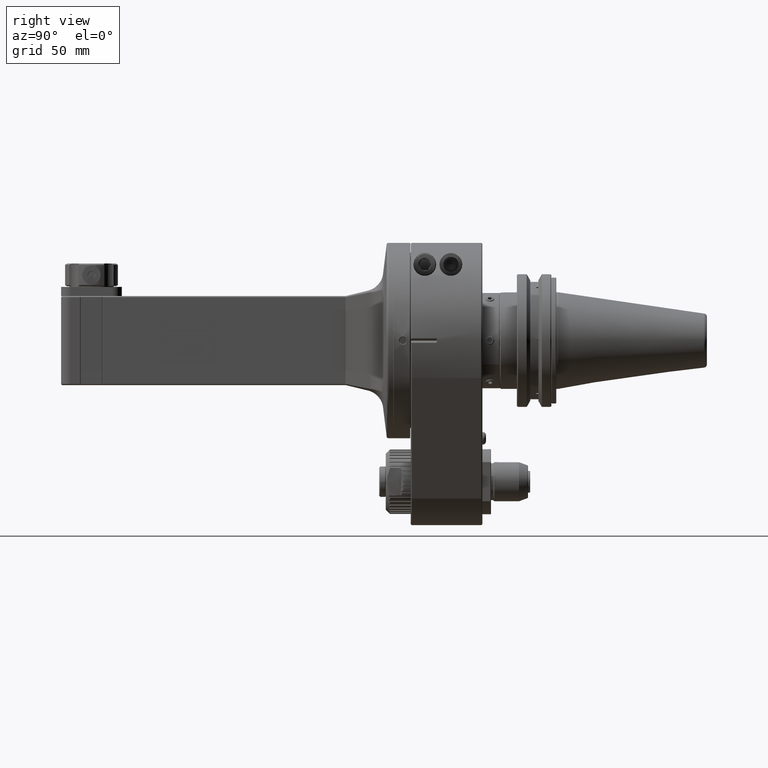
[diagram: clean part render]
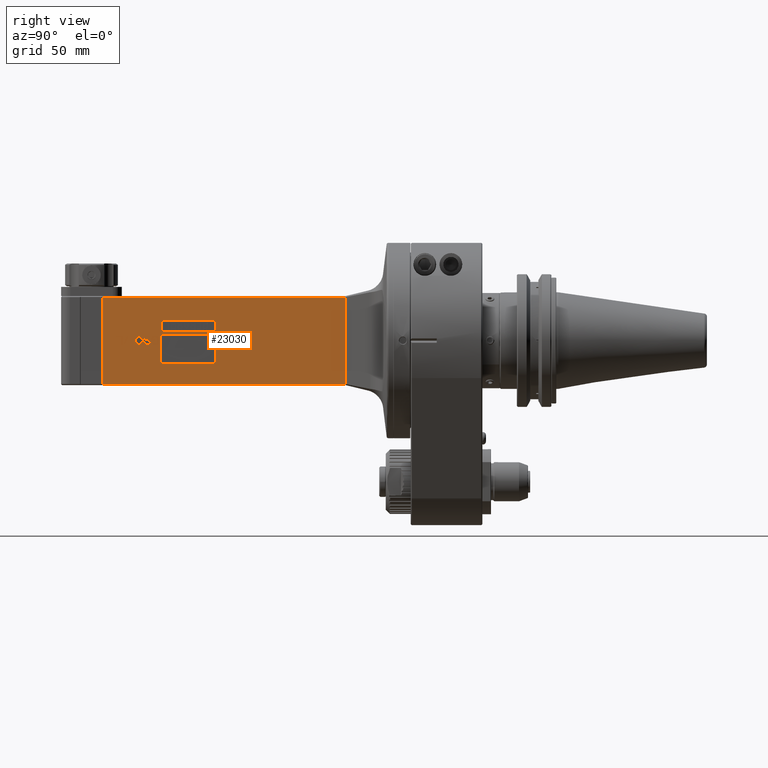
[diagram: same view with one face highlighted and labeled with its STEP entity id]
A machine part, right view. The second image highlights one B-rep face of the part: STEP entity #23030.
In plain terms, the highlighted planar face has unit normal (1, 0, 0).
Its self-contained STEP definition (entity closure, byte-faithful):
#1012=LINE('',#35683,#3087);
#1051=LINE('',#37735,#3126);
#1055=LINE('',#37744,#3130);
#1056=LINE('',#37746,#3131);
#1057=LINE('',#37749,#3132);
#1058=LINE('',#37751,#3133);
#1059=LINE('',#37753,#3134);
#1060=LINE('',#37754,#3135);
#1061=LINE('',#37757,#3136);
#1062=LINE('',#37759,#3137);
#1063=LINE('',#37761,#3138);
#1064=LINE('',#37762,#3139);
#1065=LINE('',#37765,#3140);
#1066=LINE('',#37767,#3141);
#1067=LINE('',#37769,#3142);
#1068=LINE('',#37771,#3143);
#1069=LINE('',#37773,#3144);
#1070=LINE('',#37775,#3145);
#1071=LINE('',#37777,#3146);
#1072=LINE('',#37779,#3147);
#1073=LINE('',#37781,#3148);
#1074=LINE('',#37783,#3149);
#1075=LINE('',#37785,#3150);
#1076=LINE('',#37787,#3151);
#1077=LINE('',#37789,#3152);
#1078=LINE('',#37791,#3153);
#1079=LINE('',#37793,#3154);
#1080=LINE('',#37795,#3155);
#1081=LINE('',#37797,#3156);
#1082=LINE('',#37799,#3157);
#1083=LINE('',#37801,#3158);
#1084=LINE('',#37803,#3159);
#1085=LINE('',#37805,#3160);
#1086=LINE('',#37807,#3161);
#1087=LINE('',#37809,#3162);
#1088=LINE('',#37811,#3163);
#1089=LINE('',#37813,#3164);
#1090=LINE('',#37815,#3165);
#1091=LINE('',#37817,#3166);
#1092=LINE('',#37819,#3167);
#1093=LINE('',#37821,#3168);
#1094=LINE('',#37823,#3169);
#1095=LINE('',#37825,#3170);
#1096=LINE('',#37827,#3171);
#1097=LINE('',#37829,#3172);
#1098=LINE('',#37831,#3173);
#1099=LINE('',#37833,#3174);
#1100=LINE('',#37835,#3175);
#1101=LINE('',#37837,#3176);
#1102=LINE('',#37839,#3177);
#1103=LINE('',#37841,#3178);
#1104=LINE('',#37843,#3179);
#1105=LINE('',#37845,#3180);
#1106=LINE('',#37847,#3181);
#1107=LINE('',#37849,#3182);
#1108=LINE('',#37850,#3183);
#1109=LINE('',#37853,#3184);
#1110=LINE('',#37855,#3185);
#1111=LINE('',#37857,#3186);
#1112=LINE('',#37859,#3187);
#1113=LINE('',#37861,#3188);
#1114=LINE('',#37863,#3189);
#1115=LINE('',#37865,#3190);
#1116=LINE('',#37867,#3191);
#1117=LINE('',#37869,#3192);
#1118=LINE('',#37871,#3193);
#1119=LINE('',#37873,#3194);
#1120=LINE('',#37875,#3195);
#1121=LINE('',#37877,#3196);
#1122=LINE('',#37879,#3197);
#1123=LINE('',#37881,#3198);
#1124=LINE('',#37883,#3199);
#1125=LINE('',#37885,#3200);
#1126=LINE('',#37887,#3201);
#1127=LINE('',#37889,#3202);
#1128=LINE('',#37891,#3203);
#1129=LINE('',#37893,#3204);
#1130=LINE('',#37895,#3205);
#1131=LINE('',#37897,#3206);
#1132=LINE('',#37899,#3207);
#1133=LINE('',#37901,#3208);
#1134=LINE('',#37903,#3209);
#1135=LINE('',#37905,#3210);
#1136=LINE('',#37907,#3211);
#1137=LINE('',#37909,#3212);
#1138=LINE('',#37911,#3213);
#1139=LINE('',#37913,#3214);
#1140=LINE('',#37915,#3215);
#1141=LINE('',#37917,#3216);
#1142=LINE('',#37919,#3217);
#1143=LINE('',#37921,#3218);
#1144=LINE('',#37923,#3219);
#1145=LINE('',#37925,#3220);
#1146=LINE('',#37927,#3221);
#1147=LINE('',#37929,#3222);
#1148=LINE('',#37930,#3223);
#1149=LINE('',#37933,#3224);
#1150=LINE('',#37935,#3225);
#1151=LINE('',#37937,#3226);
#1152=LINE('',#37939,#3227);
#1153=LINE('',#37941,#3228);
#1154=LINE('',#37943,#3229);
#1155=LINE('',#37945,#3230);
#1156=LINE('',#37947,#3231);
#1157=LINE('',#37949,#3232);
#1158=LINE('',#37951,#3233);
#1159=LINE('',#37953,#3234);
#1160=LINE('',#37955,#3235);
#1161=LINE('',#37957,#3236);
#1162=LINE('',#37959,#3237);
#1163=LINE('',#37961,#3238);
#1164=LINE('',#37963,#3239);
#1165=LINE('',#37965,#3240);
#1166=LINE('',#37967,#3241);
#1167=LINE('',#37969,#3242);
#1168=LINE('',#37971,#3243);
#1169=LINE('',#37973,#3244);
#1170=LINE('',#37975,#3245);
#1171=LINE('',#37977,#3246);
#1172=LINE('',#37979,#3247);
#1173=LINE('',#37981,#3248);
#1174=LINE('',#37982,#3249);
#1175=LINE('',#37985,#3250);
#1176=LINE('',#37987,#3251);
#1177=LINE('',#37989,#3252);
#1178=LINE('',#37990,#3253);
#1179=LINE('',#37993,#3254);
#1180=LINE('',#37995,#3255);
#1181=LINE('',#37997,#3256);
#1182=LINE('',#37999,#3257);
#1183=LINE('',#38001,#3258);
#1184=LINE('',#38003,#3259);
#1185=LINE('',#38004,#3260);
#1186=LINE('',#38007,#3261);
#1187=LINE('',#38009,#3262);
#1188=LINE('',#38011,#3263);
#1189=LINE('',#38013,#3264);
#1190=LINE('',#38015,#3265);
#1191=LINE('',#38016,#3266);
#3087=VECTOR('',#27712,111.8);
#3126=VECTOR('',#27937,111.8);
#3130=VECTOR('',#27951,40.);
#3131=VECTOR('',#27954,40.);
#3132=VECTOR('',#27955,13.766);
#3133=VECTOR('',#27956,25.014);
#3134=VECTOR('',#27957,13.766);
#3135=VECTOR('',#27958,25.014);
#3136=VECTOR('',#27959,5.291);
#3137=VECTOR('',#27960,25.036);
#3138=VECTOR('',#27961,5.291);
#3139=VECTOR('',#27962,25.036);
#3140=VECTOR('',#27963,1.276595711708);
#3141=VECTOR('',#27964,0.350476799417901);
#3142=VECTOR('',#27965,0.476445959700797);
#3143=VECTOR('',#27966,0.374277229504597);
#3144=VECTOR('',#27967,0.425269647757222);
#3145=VECTOR('',#27968,0.7499998807907);
#3146=VECTOR('',#27969,0.425269589358281);
#3147=VECTOR('',#27970,0.374277335673004);
#3148=VECTOR('',#27971,0.476445834598099);
#3149=VECTOR('',#27972,0.379034738092882);
#3150=VECTOR('',#27973,0.433614820179393);
#3151=VECTOR('',#27974,1.276595711708);
#3152=VECTOR('',#27975,0.433615054153596);
#3153=VECTOR('',#27976,0.379034684559679);
#3154=VECTOR('',#27977,0.476445813304122);
#3155=VECTOR('',#27978,0.374277325507999);
#3156=VECTOR('',#27979,0.425269587867295);
#3157=VECTOR('',#27980,0.7499998807907);
#3158=VECTOR('',#27981,0.425269646266095);
#3159=VECTOR('',#27982,0.374277219339489);
#3160=VECTOR('',#27983,0.476445938406725);
#3161=VECTOR('',#27984,0.433615038402985);
#3162=VECTOR('',#27985,0.5);
#3163=VECTOR('',#27986,0.268574766529104);
#3164=VECTOR('',#27987,0.302444009342788);
#3165=VECTOR('',#27988,0.344026614917808);
#3166=VECTOR('',#27989,0.7499998807907);
#3167=VECTOR('',#27990,0.344026499413802);
#3168=VECTOR('',#27991,0.302444009342788);
#3169=VECTOR('',#27992,0.304902867185089);
#3170=VECTOR('',#27993,0.350476755694905);
#3171=VECTOR('',#27994,1.276595711708);
#3172=VECTOR('',#27995,0.350476755694905);
#3173=VECTOR('',#27996,0.304902667538408);
#3174=VECTOR('',#27997,0.3024440428877);
#3175=VECTOR('',#27998,0.344026499413802);
#3176=VECTOR('',#27999,0.7499998807907);
#3177=VECTOR('',#28000,0.344026614917808);
#3178=VECTOR('',#28001,0.302444042887717);
#3179=VECTOR('',#28002,0.268574539877606);
#3180=VECTOR('',#28003,0.6808511018753);
#3181=VECTOR('',#28004,0.75);
#3182=VECTOR('',#28005,0.5106382369995);
#3183=VECTOR('',#28006,1.25);
#3184=VECTOR('',#28007,0.268574522564093);
#3185=VECTOR('',#28008,0.4166665077209);
#3186=VECTOR('',#28009,0.304902619706402);
#3187=VECTOR('',#28010,0.302444009342788);
#3188=VECTOR('',#28011,0.264089179439098);
#3189=VECTOR('',#28012,0.5);
#3190=VECTOR('',#28013,0.264089179439098);
#3191=VECTOR('',#28014,0.302444009342788);
#3192=VECTOR('',#28015,0.304902880356412);
#3193=VECTOR('',#28016,0.2685744659012);
#3194=VECTOR('',#28017,0.51739346900309);
#3195=VECTOR('',#28018,0.1702127456665);
#3196=VECTOR('',#28019,0.604888018685475);
#3197=VECTOR('',#28020,0.425269436527202);
#3198=VECTOR('',#28021,0.4166669845581);
#3199=VECTOR('',#28022,0.425269436527202);
#3200=VECTOR('',#28023,0.488670472739893);
#3201=VECTOR('',#28024,0.422361829654802);
#3202=VECTOR('',#28025,0.457006752345693);
#3203=VECTOR('',#28026,0.340425491333);
#3204=VECTOR('',#28027,0.457006974343897);
#3205=VECTOR('',#28028,0.422361829654802);
#3206=VECTOR('',#28029,0.488670472739893);
#3207=VECTOR('',#28030,0.425269412670614);
#3208=VECTOR('',#28031,0.4166669845581);
#3209=VECTOR('',#28032,0.425269412670614);
#3210=VECTOR('',#28033,0.488670472739893);
#3211=VECTOR('',#28034,0.422361829654802);
#3212=VECTOR('',#28035,0.45700706129329);
#3213=VECTOR('',#28036,0.601544704579297);
#3214=VECTOR('',#28037,0.5957446098327);
#3215=VECTOR('',#28038,0.601544822639182);
#3216=VECTOR('',#28039,0.457006894794711);
#3217=VECTOR('',#28040,0.422361853675616);
#3218=VECTOR('',#28041,0.488670484418169);
#3219=VECTOR('',#28042,0.425269414161601);
#3220=VECTOR('',#28043,0.3333334922791);
#3221=VECTOR('',#28044,0.425269414161601);
#3222=VECTOR('',#28045,0.488670890994998);
#3223=VECTOR('',#28046,0.422361853675616);
#3224=VECTOR('',#28047,0.7659573554993);
#3225=VECTOR('',#28048,0.433614758608899);
#3226=VECTOR('',#28049,0.268574840505588);
#3227=VECTOR('',#28050,0.379034615761192);
#3228=VECTOR('',#28051,0.357334704010493);
#3229=VECTOR('',#28052,0.488670066163185);
#3230=VECTOR('',#28053,0.507191378768213);
#3231=VECTOR('',#28054,0.507191378768213);
#3232=VECTOR('',#28055,0.48867087931679);
#3233=VECTOR('',#28056,0.357334370403284);
#3234=VECTOR('',#28057,0.379034825432989);
#3235=VECTOR('',#28058,0.268574692552808);
#3236=VECTOR('',#28059,0.433614758608899);
#3237=VECTOR('',#28060,0.7659573554993);
#3238=VECTOR('',#28061,0.433614875596007);
#3239=VECTOR('',#28062,0.2685744659012);
#3240=VECTOR('',#28063,0.379034878966189);
#3241=VECTOR('',#28064,0.357334391697303);
#3242=VECTOR('',#28065,0.488670890995098);
#3243=VECTOR('',#28066,0.507191380018417);
#3244=VECTOR('',#28067,0.507191380018417);
#3245=VECTOR('',#28068,0.48867007784147);
#3246=VECTOR('',#28069,0.357334725304617);
#3247=VECTOR('',#28070,0.379034669294405);
#3248=VECTOR('',#28071,0.268574613854201);
#3249=VECTOR('',#28072,0.433614875596007);
#3250=VECTOR('',#28073,0.4255319833755);
#3251=VECTOR('',#28074,1.166666984558);
#3252=VECTOR('',#28075,0.4255319833755);
#3253=VECTOR('',#28076,1.166666984558);
#3254=VECTOR('',#28077,0.4255318641663);
#3255=VECTOR('',#28078,3.94393221183011);
#3256=VECTOR('',#28079,0.5);
#3257=VECTOR('',#28080,3.94393180881602);
#3258=VECTOR('',#28081,2.5);
#3259=VECTOR('',#28082,0.4255318641663);
#3260=VECTOR('',#28083,3.000000953674);
#3261=VECTOR('',#28084,4.);
#3262=VECTOR('',#28085,0.5);
#3263=VECTOR('',#28086,3.489361703396);
#3264=VECTOR('',#28087,2.5);
#3265=VECTOR('',#28088,0.5106382966042);
#3266=VECTOR('',#28089,3.);
#5241=FACE_BOUND('',#7000,.T.);
#5242=FACE_BOUND('',#7001,.T.);
#5243=FACE_BOUND('',#7002,.T.);
#5244=FACE_BOUND('',#7003,.T.);
#5245=FACE_BOUND('',#7004,.T.);
#5246=FACE_BOUND('',#7005,.T.);
#5247=FACE_BOUND('',#7006,.T.);
#5248=FACE_BOUND('',#7007,.T.);
#5584=FACE_OUTER_BOUND('',#6999,.T.);
#6999=EDGE_LOOP('',(#16264,#16265,#16266,#16267));
#7000=EDGE_LOOP('',(#16268,#16269,#16270,#16271));
#7001=EDGE_LOOP('',(#16272,#16273,#16274,#16275));
#7002=EDGE_LOOP('',(#16276,#16277,#16278,#16279,#16280,#16281,#16282,#16283,
#16284,#16285,#16286,#16287,#16288,#16289,#16290,#16291,#16292,#16293,#16294,
#16295,#16296,#16297,#16298,#16299,#16300,#16301,#16302,#16303,#16304,#16305,
#16306,#16307,#16308,#16309,#16310,#16311,#16312,#16313,#16314,#16315,#16316,
#16317,#16318,#16319));
#7003=EDGE_LOOP('',(#16320,#16321,#16322,#16323,#16324,#16325,#16326,#16327,
#16328,#16329,#16330,#16331,#16332,#16333,#16334,#16335,#16336,#16337,#16338,
#16339,#16340,#16341,#16342,#16343,#16344,#16345,#16346,#16347,#16348,#16349,
#16350,#16351,#16352,#16353,#16354,#16355,#16356,#16357,#16358,#16359));
#7004=EDGE_LOOP('',(#16360,#16361,#16362,#16363,#16364,#16365,#16366,#16367,
#16368,#16369,#16370,#16371,#16372,#16373,#16374,#16375,#16376,#16377,#16378,
#16379,#16380,#16381,#16382,#16383,#16384,#16385));
#7005=EDGE_LOOP('',(#16386,#16387,#16388,#16389));
#7006=EDGE_LOOP('',(#16390,#16391,#16392,#16393,#16394,#16395,#16396));
#7007=EDGE_LOOP('',(#16397,#16398,#16399,#16400,#16401,#16402));
#9597=VERTEX_POINT('',#35680);
#9598=VERTEX_POINT('',#35682);
#9655=VERTEX_POINT('',#37492);
#9690=VERTEX_POINT('',#37734);
#9691=VERTEX_POINT('',#37747);
#9692=VERTEX_POINT('',#37748);
#9693=VERTEX_POINT('',#37750);
#9694=VERTEX_POINT('',#37752);
#9695=VERTEX_POINT('',#37755);
#9696=VERTEX_POINT('',#37756);
#9697=VERTEX_POINT('',#37758);
#9698=VERTEX_POINT('',#37760);
#9699=VERTEX_POINT('',#37763);
#9700=VERTEX_POINT('',#37764);
#9701=VERTEX_POINT('',#37766);
#9702=VERTEX_POINT('',#37768);
#9703=VERTEX_POINT('',#37770);
#9704=VERTEX_POINT('',#37772);
#9705=VERTEX_POINT('',#37774);
#9706=VERTEX_POINT('',#37776);
#9707=VERTEX_POINT('',#37778);
#9708=VERTEX_POINT('',#37780);
#9709=VERTEX_POINT('',#37782);
#9710=VERTEX_POINT('',#37784);
#9711=VERTEX_POINT('',#37786);
#9712=VERTEX_POINT('',#37788);
#9713=VERTEX_POINT('',#37790);
#9714=VERTEX_POINT('',#37792);
#9715=VERTEX_POINT('',#37794);
#9716=VERTEX_POINT('',#37796);
#9717=VERTEX_POINT('',#37798);
#9718=VERTEX_POINT('',#37800);
#9719=VERTEX_POINT('',#37802);
#9720=VERTEX_POINT('',#37804);
#9721=VERTEX_POINT('',#37806);
#9722=VERTEX_POINT('',#37808);
#9723=VERTEX_POINT('',#37810);
#9724=VERTEX_POINT('',#37812);
#9725=VERTEX_POINT('',#37814);
#9726=VERTEX_POINT('',#37816);
#9727=VERTEX_POINT('',#37818);
#9728=VERTEX_POINT('',#37820);
#9729=VERTEX_POINT('',#37822);
#9730=VERTEX_POINT('',#37824);
#9731=VERTEX_POINT('',#37826);
#9732=VERTEX_POINT('',#37828);
#9733=VERTEX_POINT('',#37830);
#9734=VERTEX_POINT('',#37832);
#9735=VERTEX_POINT('',#37834);
#9736=VERTEX_POINT('',#37836);
#9737=VERTEX_POINT('',#37838);
#9738=VERTEX_POINT('',#37840);
#9739=VERTEX_POINT('',#37842);
#9740=VERTEX_POINT('',#37844);
#9741=VERTEX_POINT('',#37846);
#9742=VERTEX_POINT('',#37848);
#9743=VERTEX_POINT('',#37851);
#9744=VERTEX_POINT('',#37852);
#9745=VERTEX_POINT('',#37854);
#9746=VERTEX_POINT('',#37856);
#9747=VERTEX_POINT('',#37858);
#9748=VERTEX_POINT('',#37860);
#9749=VERTEX_POINT('',#37862);
#9750=VERTEX_POINT('',#37864);
#9751=VERTEX_POINT('',#37866);
#9752=VERTEX_POINT('',#37868);
#9753=VERTEX_POINT('',#37870);
#9754=VERTEX_POINT('',#37872);
#9755=VERTEX_POINT('',#37874);
#9756=VERTEX_POINT('',#37876);
#9757=VERTEX_POINT('',#37878);
#9758=VERTEX_POINT('',#37880);
#9759=VERTEX_POINT('',#37882);
#9760=VERTEX_POINT('',#37884);
#9761=VERTEX_POINT('',#37886);
#9762=VERTEX_POINT('',#37888);
#9763=VERTEX_POINT('',#37890);
#9764=VERTEX_POINT('',#37892);
#9765=VERTEX_POINT('',#37894);
#9766=VERTEX_POINT('',#37896);
#9767=VERTEX_POINT('',#37898);
#9768=VERTEX_POINT('',#37900);
#9769=VERTEX_POINT('',#37902);
#9770=VERTEX_POINT('',#37904);
#9771=VERTEX_POINT('',#37906);
#9772=VERTEX_POINT('',#37908);
#9773=VERTEX_POINT('',#37910);
#9774=VERTEX_POINT('',#37912);
#9775=VERTEX_POINT('',#37914);
#9776=VERTEX_POINT('',#37916);
#9777=VERTEX_POINT('',#37918);
#9778=VERTEX_POINT('',#37920);
#9779=VERTEX_POINT('',#37922);
#9780=VERTEX_POINT('',#37924);
#9781=VERTEX_POINT('',#37926);
#9782=VERTEX_POINT('',#37928);
#9783=VERTEX_POINT('',#37931);
#9784=VERTEX_POINT('',#37932);
#9785=VERTEX_POINT('',#37934);
#9786=VERTEX_POINT('',#37936);
#9787=VERTEX_POINT('',#37938);
#9788=VERTEX_POINT('',#37940);
#9789=VERTEX_POINT('',#37942);
#9790=VERTEX_POINT('',#37944);
#9791=VERTEX_POINT('',#37946);
#9792=VERTEX_POINT('',#37948);
#9793=VERTEX_POINT('',#37950);
#9794=VERTEX_POINT('',#37952);
#9795=VERTEX_POINT('',#37954);
#9796=VERTEX_POINT('',#37956);
#9797=VERTEX_POINT('',#37958);
#9798=VERTEX_POINT('',#37960);
#9799=VERTEX_POINT('',#37962);
#9800=VERTEX_POINT('',#37964);
#9801=VERTEX_POINT('',#37966);
#9802=VERTEX_POINT('',#37968);
#9803=VERTEX_POINT('',#37970);
#9804=VERTEX_POINT('',#37972);
#9805=VERTEX_POINT('',#37974);
#9806=VERTEX_POINT('',#37976);
#9807=VERTEX_POINT('',#37978);
#9808=VERTEX_POINT('',#37980);
#9809=VERTEX_POINT('',#37983);
#9810=VERTEX_POINT('',#37984);
#9811=VERTEX_POINT('',#37986);
#9812=VERTEX_POINT('',#37988);
#9813=VERTEX_POINT('',#37991);
#9814=VERTEX_POINT('',#37992);
#9815=VERTEX_POINT('',#37994);
#9816=VERTEX_POINT('',#37996);
#9817=VERTEX_POINT('',#37998);
#9818=VERTEX_POINT('',#38000);
#9819=VERTEX_POINT('',#38002);
#9820=VERTEX_POINT('',#38005);
#9821=VERTEX_POINT('',#38006);
#9822=VERTEX_POINT('',#38008);
#9823=VERTEX_POINT('',#38010);
#9824=VERTEX_POINT('',#38012);
#9825=VERTEX_POINT('',#38014);
#12055=EDGE_CURVE('',#9598,#9597,#1012,.T.);
#12191=EDGE_CURVE('',#9655,#9690,#1051,.T.);
#12196=EDGE_CURVE('',#9690,#9597,#1055,.T.);
#12197=EDGE_CURVE('',#9655,#9598,#1056,.T.);
#12198=EDGE_CURVE('',#9691,#9692,#1057,.T.);
#12199=EDGE_CURVE('',#9693,#9691,#1058,.T.);
#12200=EDGE_CURVE('',#9694,#9693,#1059,.T.);
#12201=EDGE_CURVE('',#9692,#9694,#1060,.T.);
#12202=EDGE_CURVE('',#9695,#9696,#1061,.T.);
#12203=EDGE_CURVE('',#9697,#9695,#1062,.T.);
#12204=EDGE_CURVE('',#9698,#9697,#1063,.T.);
#12205=EDGE_CURVE('',#9696,#9698,#1064,.T.);
#12206=EDGE_CURVE('',#9699,#9700,#1065,.T.);
#12207=EDGE_CURVE('',#9701,#9699,#1066,.T.);
#12208=EDGE_CURVE('',#9702,#9701,#1067,.T.);
#12209=EDGE_CURVE('',#9703,#9702,#1068,.T.);
#12210=EDGE_CURVE('',#9704,#9703,#1069,.T.);
#12211=EDGE_CURVE('',#9705,#9704,#1070,.T.);
#12212=EDGE_CURVE('',#9706,#9705,#1071,.T.);
#12213=EDGE_CURVE('',#9707,#9706,#1072,.T.);
#12214=EDGE_CURVE('',#9708,#9707,#1073,.T.);
#12215=EDGE_CURVE('',#9709,#9708,#1074,.T.);
#12216=EDGE_CURVE('',#9710,#9709,#1075,.T.);
#12217=EDGE_CURVE('',#9711,#9710,#1076,.T.);
#12218=EDGE_CURVE('',#9712,#9711,#1077,.T.);
#12219=EDGE_CURVE('',#9713,#9712,#1078,.T.);
#12220=EDGE_CURVE('',#9714,#9713,#1079,.T.);
#12221=EDGE_CURVE('',#9715,#9714,#1080,.T.);
#12222=EDGE_CURVE('',#9716,#9715,#1081,.T.);
#12223=EDGE_CURVE('',#9717,#9716,#1082,.T.);
#12224=EDGE_CURVE('',#9718,#9717,#1083,.T.);
#12225=EDGE_CURVE('',#9719,#9718,#1084,.T.);
#12226=EDGE_CURVE('',#9720,#9719,#1085,.T.);
#12227=EDGE_CURVE('',#9721,#9720,#1086,.T.);
#12228=EDGE_CURVE('',#9722,#9721,#1087,.T.);
#12229=EDGE_CURVE('',#9723,#9722,#1088,.T.);
#12230=EDGE_CURVE('',#9724,#9723,#1089,.T.);
#12231=EDGE_CURVE('',#9725,#9724,#1090,.T.);
#12232=EDGE_CURVE('',#9726,#9725,#1091,.T.);
#12233=EDGE_CURVE('',#9727,#9726,#1092,.T.);
#12234=EDGE_CURVE('',#9728,#9727,#1093,.T.);
#12235=EDGE_CURVE('',#9729,#9728,#1094,.T.);
#12236=EDGE_CURVE('',#9730,#9729,#1095,.T.);
#12237=EDGE_CURVE('',#9731,#9730,#1096,.T.);
#12238=EDGE_CURVE('',#9732,#9731,#1097,.T.);
#12239=EDGE_CURVE('',#9733,#9732,#1098,.T.);
#12240=EDGE_CURVE('',#9734,#9733,#1099,.T.);
#12241=EDGE_CURVE('',#9735,#9734,#1100,.T.);
#12242=EDGE_CURVE('',#9736,#9735,#1101,.T.);
#12243=EDGE_CURVE('',#9737,#9736,#1102,.T.);
#12244=EDGE_CURVE('',#9738,#9737,#1103,.T.);
#12245=EDGE_CURVE('',#9739,#9738,#1104,.T.);
#12246=EDGE_CURVE('',#9740,#9739,#1105,.T.);
#12247=EDGE_CURVE('',#9741,#9740,#1106,.T.);
#12248=EDGE_CURVE('',#9742,#9741,#1107,.T.);
#12249=EDGE_CURVE('',#9700,#9742,#1108,.T.);
#12250=EDGE_CURVE('',#9743,#9744,#1109,.T.);
#12251=EDGE_CURVE('',#9745,#9743,#1110,.T.);
#12252=EDGE_CURVE('',#9746,#9745,#1111,.T.);
#12253=EDGE_CURVE('',#9747,#9746,#1112,.T.);
#12254=EDGE_CURVE('',#9748,#9747,#1113,.T.);
#12255=EDGE_CURVE('',#9749,#9748,#1114,.T.);
#12256=EDGE_CURVE('',#9750,#9749,#1115,.T.);
#12257=EDGE_CURVE('',#9751,#9750,#1116,.T.);
#12258=EDGE_CURVE('',#9752,#9751,#1117,.T.);
#12259=EDGE_CURVE('',#9753,#9752,#1118,.T.);
#12260=EDGE_CURVE('',#9754,#9753,#1119,.T.);
#12261=EDGE_CURVE('',#9755,#9754,#1120,.T.);
#12262=EDGE_CURVE('',#9756,#9755,#1121,.T.);
#12263=EDGE_CURVE('',#9757,#9756,#1122,.T.);
#12264=EDGE_CURVE('',#9758,#9757,#1123,.T.);
#12265=EDGE_CURVE('',#9759,#9758,#1124,.T.);
#12266=EDGE_CURVE('',#9760,#9759,#1125,.T.);
#12267=EDGE_CURVE('',#9761,#9760,#1126,.T.);
#12268=EDGE_CURVE('',#9762,#9761,#1127,.T.);
#12269=EDGE_CURVE('',#9763,#9762,#1128,.T.);
#12270=EDGE_CURVE('',#9764,#9763,#1129,.T.);
#12271=EDGE_CURVE('',#9765,#9764,#1130,.T.);
#12272=EDGE_CURVE('',#9766,#9765,#1131,.T.);
#12273=EDGE_CURVE('',#9767,#9766,#1132,.T.);
#12274=EDGE_CURVE('',#9768,#9767,#1133,.T.);
#12275=EDGE_CURVE('',#9769,#9768,#1134,.T.);
#12276=EDGE_CURVE('',#9770,#9769,#1135,.T.);
#12277=EDGE_CURVE('',#9771,#9770,#1136,.T.);
#12278=EDGE_CURVE('',#9772,#9771,#1137,.T.);
#12279=EDGE_CURVE('',#9773,#9772,#1138,.T.);
#12280=EDGE_CURVE('',#9774,#9773,#1139,.T.);
#12281=EDGE_CURVE('',#9775,#9774,#1140,.T.);
#12282=EDGE_CURVE('',#9776,#9775,#1141,.T.);
#12283=EDGE_CURVE('',#9777,#9776,#1142,.T.);
#12284=EDGE_CURVE('',#9778,#9777,#1143,.T.);
#12285=EDGE_CURVE('',#9779,#9778,#1144,.T.);
#12286=EDGE_CURVE('',#9780,#9779,#1145,.T.);
#12287=EDGE_CURVE('',#9781,#9780,#1146,.T.);
#12288=EDGE_CURVE('',#9782,#9781,#1147,.T.);
#12289=EDGE_CURVE('',#9744,#9782,#1148,.T.);
#12290=EDGE_CURVE('',#9783,#9784,#1149,.T.);
#12291=EDGE_CURVE('',#9785,#9783,#1150,.T.);
#12292=EDGE_CURVE('',#9786,#9785,#1151,.T.);
#12293=EDGE_CURVE('',#9787,#9786,#1152,.T.);
#12294=EDGE_CURVE('',#9788,#9787,#1153,.T.);
#12295=EDGE_CURVE('',#9789,#9788,#1154,.T.);
#12296=EDGE_CURVE('',#9790,#9789,#1155,.T.);
#12297=EDGE_CURVE('',#9791,#9790,#1156,.T.);
#12298=EDGE_CURVE('',#9792,#9791,#1157,.T.);
#12299=EDGE_CURVE('',#9793,#9792,#1158,.T.);
#12300=EDGE_CURVE('',#9794,#9793,#1159,.T.);
#12301=EDGE_CURVE('',#9795,#9794,#1160,.T.);
#12302=EDGE_CURVE('',#9796,#9795,#1161,.T.);
#12303=EDGE_CURVE('',#9797,#9796,#1162,.T.);
#12304=EDGE_CURVE('',#9798,#9797,#1163,.T.);
#12305=EDGE_CURVE('',#9799,#9798,#1164,.T.);
#12306=EDGE_CURVE('',#9800,#9799,#1165,.T.);
#12307=EDGE_CURVE('',#9801,#9800,#1166,.T.);
#12308=EDGE_CURVE('',#9802,#9801,#1167,.T.);
#12309=EDGE_CURVE('',#9803,#9802,#1168,.T.);
#12310=EDGE_CURVE('',#9804,#9803,#1169,.T.);
#12311=EDGE_CURVE('',#9805,#9804,#1170,.T.);
#12312=EDGE_CURVE('',#9806,#9805,#1171,.T.);
#12313=EDGE_CURVE('',#9807,#9806,#1172,.T.);
#12314=EDGE_CURVE('',#9808,#9807,#1173,.T.);
#12315=EDGE_CURVE('',#9784,#9808,#1174,.T.);
#12316=EDGE_CURVE('',#9809,#9810,#1175,.T.);
#12317=EDGE_CURVE('',#9811,#9809,#1176,.T.);
#12318=EDGE_CURVE('',#9812,#9811,#1177,.T.);
#12319=EDGE_CURVE('',#9810,#9812,#1178,.T.);
#12320=EDGE_CURVE('',#9813,#9814,#1179,.T.);
#12321=EDGE_CURVE('',#9815,#9813,#1180,.T.);
#12322=EDGE_CURVE('',#9816,#9815,#1181,.T.);
#12323=EDGE_CURVE('',#9817,#9816,#1182,.T.);
#12324=EDGE_CURVE('',#9818,#9817,#1183,.T.);
#12325=EDGE_CURVE('',#9819,#9818,#1184,.T.);
#12326=EDGE_CURVE('',#9814,#9819,#1185,.T.);
#12327=EDGE_CURVE('',#9820,#9821,#1186,.T.);
#12328=EDGE_CURVE('',#9822,#9820,#1187,.T.);
#12329=EDGE_CURVE('',#9823,#9822,#1188,.T.);
#12330=EDGE_CURVE('',#9824,#9823,#1189,.T.);
#12331=EDGE_CURVE('',#9825,#9824,#1190,.T.);
#12332=EDGE_CURVE('',#9821,#9825,#1191,.T.);
#16264=ORIENTED_EDGE('',*,*,#12196,.F.);
#16265=ORIENTED_EDGE('',*,*,#12191,.F.);
#16266=ORIENTED_EDGE('',*,*,#12197,.T.);
#16267=ORIENTED_EDGE('',*,*,#12055,.T.);
#16268=ORIENTED_EDGE('',*,*,#12198,.F.);
#16269=ORIENTED_EDGE('',*,*,#12199,.F.);
#16270=ORIENTED_EDGE('',*,*,#12200,.F.);
#16271=ORIENTED_EDGE('',*,*,#12201,.F.);
#16272=ORIENTED_EDGE('',*,*,#12202,.F.);
#16273=ORIENTED_EDGE('',*,*,#12203,.F.);
#16274=ORIENTED_EDGE('',*,*,#12204,.F.);
#16275=ORIENTED_EDGE('',*,*,#12205,.F.);
#16276=ORIENTED_EDGE('',*,*,#12206,.F.);
#16277=ORIENTED_EDGE('',*,*,#12207,.F.);
#16278=ORIENTED_EDGE('',*,*,#12208,.F.);
#16279=ORIENTED_EDGE('',*,*,#12209,.F.);
#16280=ORIENTED_EDGE('',*,*,#12210,.F.);
#16281=ORIENTED_EDGE('',*,*,#12211,.F.);
#16282=ORIENTED_EDGE('',*,*,#12212,.F.);
#16283=ORIENTED_EDGE('',*,*,#12213,.F.);
#16284=ORIENTED_EDGE('',*,*,#12214,.F.);
#16285=ORIENTED_EDGE('',*,*,#12215,.F.);
#16286=ORIENTED_EDGE('',*,*,#12216,.F.);
#16287=ORIENTED_EDGE('',*,*,#12217,.F.);
#16288=ORIENTED_EDGE('',*,*,#12218,.F.);
#16289=ORIENTED_EDGE('',*,*,#12219,.F.);
#16290=ORIENTED_EDGE('',*,*,#12220,.F.);
#16291=ORIENTED_EDGE('',*,*,#12221,.F.);
#16292=ORIENTED_EDGE('',*,*,#12222,.F.);
#16293=ORIENTED_EDGE('',*,*,#12223,.F.);
#16294=ORIENTED_EDGE('',*,*,#12224,.F.);
#16295=ORIENTED_EDGE('',*,*,#12225,.F.);
#16296=ORIENTED_EDGE('',*,*,#12226,.F.);
#16297=ORIENTED_EDGE('',*,*,#12227,.F.);
#16298=ORIENTED_EDGE('',*,*,#12228,.F.);
#16299=ORIENTED_EDGE('',*,*,#12229,.F.);
#16300=ORIENTED_EDGE('',*,*,#12230,.F.);
#16301=ORIENTED_EDGE('',*,*,#12231,.F.);
#16302=ORIENTED_EDGE('',*,*,#12232,.F.);
#16303=ORIENTED_EDGE('',*,*,#12233,.F.);
#16304=ORIENTED_EDGE('',*,*,#12234,.F.);
#16305=ORIENTED_EDGE('',*,*,#12235,.F.);
#16306=ORIENTED_EDGE('',*,*,#12236,.F.);
#16307=ORIENTED_EDGE('',*,*,#12237,.F.);
#16308=ORIENTED_EDGE('',*,*,#12238,.F.);
#16309=ORIENTED_EDGE('',*,*,#12239,.F.);
#16310=ORIENTED_EDGE('',*,*,#12240,.F.);
#16311=ORIENTED_EDGE('',*,*,#12241,.F.);
#16312=ORIENTED_EDGE('',*,*,#12242,.F.);
#16313=ORIENTED_EDGE('',*,*,#12243,.F.);
#16314=ORIENTED_EDGE('',*,*,#12244,.F.);
#16315=ORIENTED_EDGE('',*,*,#12245,.F.);
#16316=ORIENTED_EDGE('',*,*,#12246,.F.);
#16317=ORIENTED_EDGE('',*,*,#12247,.F.);
#16318=ORIENTED_EDGE('',*,*,#12248,.F.);
#16319=ORIENTED_EDGE('',*,*,#12249,.F.);
#16320=ORIENTED_EDGE('',*,*,#12250,.F.);
#16321=ORIENTED_EDGE('',*,*,#12251,.F.);
#16322=ORIENTED_EDGE('',*,*,#12252,.F.);
#16323=ORIENTED_EDGE('',*,*,#12253,.F.);
#16324=ORIENTED_EDGE('',*,*,#12254,.F.);
#16325=ORIENTED_EDGE('',*,*,#12255,.F.);
#16326=ORIENTED_EDGE('',*,*,#12256,.F.);
#16327=ORIENTED_EDGE('',*,*,#12257,.F.);
#16328=ORIENTED_EDGE('',*,*,#12258,.F.);
#16329=ORIENTED_EDGE('',*,*,#12259,.F.);
#16330=ORIENTED_EDGE('',*,*,#12260,.F.);
#16331=ORIENTED_EDGE('',*,*,#12261,.F.);
#16332=ORIENTED_EDGE('',*,*,#12262,.F.);
#16333=ORIENTED_EDGE('',*,*,#12263,.F.);
#16334=ORIENTED_EDGE('',*,*,#12264,.F.);
#16335=ORIENTED_EDGE('',*,*,#12265,.F.);
#16336=ORIENTED_EDGE('',*,*,#12266,.F.);
#16337=ORIENTED_EDGE('',*,*,#12267,.F.);
#16338=ORIENTED_EDGE('',*,*,#12268,.F.);
#16339=ORIENTED_EDGE('',*,*,#12269,.F.);
#16340=ORIENTED_EDGE('',*,*,#12270,.F.);
#16341=ORIENTED_EDGE('',*,*,#12271,.F.);
#16342=ORIENTED_EDGE('',*,*,#12272,.F.);
#16343=ORIENTED_EDGE('',*,*,#12273,.F.);
#16344=ORIENTED_EDGE('',*,*,#12274,.F.);
#16345=ORIENTED_EDGE('',*,*,#12275,.F.);
#16346=ORIENTED_EDGE('',*,*,#12276,.F.);
#16347=ORIENTED_EDGE('',*,*,#12277,.F.);
#16348=ORIENTED_EDGE('',*,*,#12278,.F.);
#16349=ORIENTED_EDGE('',*,*,#12279,.F.);
#16350=ORIENTED_EDGE('',*,*,#12280,.F.);
#16351=ORIENTED_EDGE('',*,*,#12281,.F.);
#16352=ORIENTED_EDGE('',*,*,#12282,.F.);
#16353=ORIENTED_EDGE('',*,*,#12283,.F.);
#16354=ORIENTED_EDGE('',*,*,#12284,.F.);
#16355=ORIENTED_EDGE('',*,*,#12285,.F.);
#16356=ORIENTED_EDGE('',*,*,#12286,.F.);
#16357=ORIENTED_EDGE('',*,*,#12287,.F.);
#16358=ORIENTED_EDGE('',*,*,#12288,.F.);
#16359=ORIENTED_EDGE('',*,*,#12289,.F.);
#16360=ORIENTED_EDGE('',*,*,#12290,.F.);
#16361=ORIENTED_EDGE('',*,*,#12291,.F.);
#16362=ORIENTED_EDGE('',*,*,#12292,.F.);
#16363=ORIENTED_EDGE('',*,*,#12293,.F.);
#16364=ORIENTED_EDGE('',*,*,#12294,.F.);
#16365=ORIENTED_EDGE('',*,*,#12295,.F.);
#16366=ORIENTED_EDGE('',*,*,#12296,.F.);
#16367=ORIENTED_EDGE('',*,*,#12297,.F.);
#16368=ORIENTED_EDGE('',*,*,#12298,.F.);
#16369=ORIENTED_EDGE('',*,*,#12299,.F.);
#16370=ORIENTED_EDGE('',*,*,#12300,.F.);
#16371=ORIENTED_EDGE('',*,*,#12301,.F.);
#16372=ORIENTED_EDGE('',*,*,#12302,.F.);
#16373=ORIENTED_EDGE('',*,*,#12303,.F.);
#16374=ORIENTED_EDGE('',*,*,#12304,.F.);
#16375=ORIENTED_EDGE('',*,*,#12305,.F.);
#16376=ORIENTED_EDGE('',*,*,#12306,.F.);
#16377=ORIENTED_EDGE('',*,*,#12307,.F.);
#16378=ORIENTED_EDGE('',*,*,#12308,.F.);
#16379=ORIENTED_EDGE('',*,*,#12309,.F.);
#16380=ORIENTED_EDGE('',*,*,#12310,.F.);
#16381=ORIENTED_EDGE('',*,*,#12311,.F.);
#16382=ORIENTED_EDGE('',*,*,#12312,.F.);
#16383=ORIENTED_EDGE('',*,*,#12313,.F.);
#16384=ORIENTED_EDGE('',*,*,#12314,.F.);
#16385=ORIENTED_EDGE('',*,*,#12315,.F.);
#16386=ORIENTED_EDGE('',*,*,#12316,.F.);
#16387=ORIENTED_EDGE('',*,*,#12317,.F.);
#16388=ORIENTED_EDGE('',*,*,#12318,.F.);
#16389=ORIENTED_EDGE('',*,*,#12319,.F.);
#16390=ORIENTED_EDGE('',*,*,#12320,.F.);
#16391=ORIENTED_EDGE('',*,*,#12321,.F.);
#16392=ORIENTED_EDGE('',*,*,#12322,.F.);
#16393=ORIENTED_EDGE('',*,*,#12323,.F.);
#16394=ORIENTED_EDGE('',*,*,#12324,.F.);
#16395=ORIENTED_EDGE('',*,*,#12325,.F.);
#16396=ORIENTED_EDGE('',*,*,#12326,.F.);
#16397=ORIENTED_EDGE('',*,*,#12327,.F.);
#16398=ORIENTED_EDGE('',*,*,#12328,.F.);
#16399=ORIENTED_EDGE('',*,*,#12329,.F.);
#16400=ORIENTED_EDGE('',*,*,#12330,.F.);
#16401=ORIENTED_EDGE('',*,*,#12331,.F.);
#16402=ORIENTED_EDGE('',*,*,#12332,.F.);
#22099=PLANE('',#24753);
#23030=ADVANCED_FACE('',(#5584,#5241,#5242,#5243,#5244,#5245,#5246,#5247,
#5248),#22099,.T.);
#24753=AXIS2_PLACEMENT_3D('',#37745,#27952,#27953);
#27712=DIRECTION('',(0.,-1.,0.));
#27937=DIRECTION('',(0.,-1.,0.));
#27951=DIRECTION('',(0.,0.,1.));
#27952=DIRECTION('center_axis',(1.,0.,0.));
#27953=DIRECTION('ref_axis',(0.,1.,0.));
#27954=DIRECTION('',(0.,0.,1.));
#27955=DIRECTION('',(0.,0.,1.));
#27956=DIRECTION('',(0.,1.,0.));
#27957=DIRECTION('',(0.,0.,-1.));
#27958=DIRECTION('',(0.,-1.,0.));
#27959=DIRECTION('',(0.,0.,1.));
#27960=DIRECTION('',(0.,1.,0.));
#27961=DIRECTION('',(0.,0.,-1.));
#27962=DIRECTION('',(0.,-1.,0.));
#27963=DIRECTION('',(0.,0.,-1.));
#27964=DIRECTION('',(0.,-0.237771099253599,-0.971321215849698));
#27965=DIRECTION('',(0.,-0.699624974232905,-0.714510248652605));
#27966=DIRECTION('',(0.,-0.890605218761708,-0.454777246918104));
#27967=DIRECTION('',(0.,-0.97977071332735,-0.20012333523609));
#27968=DIRECTION('',(0.,-1.,0.));
#27969=DIRECTION('',(0.,-0.979770707714145,0.200123362717409));
#27970=DIRECTION('',(0.,-0.890605284635691,0.454777117914896));
#27971=DIRECTION('',(0.,-0.699624782628801,0.714510436265001));
#27972=DIRECTION('',(0.,-0.439713428435921,0.898138130163244));
#27973=DIRECTION('',(0.,-0.192182858930903,0.981359133413015));
#27974=DIRECTION('',(0.,0.,1.));
#27975=DIRECTION('',(0.,0.192182755231002,0.98135915372091));
#27976=DIRECTION('',(0.,0.439713490539125,0.89813809975855));
#27977=DIRECTION('',(0.,0.699624813897568,0.714510405647667));
#27978=DIRECTION('',(0.,0.890605308823803,0.454777070546502));
#27979=DIRECTION('',(0.,0.979770711149312,0.200123345899402));
#27980=DIRECTION('',(0.,1.,0.));
#27981=DIRECTION('',(0.,0.979770716762512,-0.200123318418102));
#27982=DIRECTION('',(0.,0.890605242949827,-0.454777199549714));
#27983=DIRECTION('',(0.,0.699625005501663,-0.714510218035262));
#27984=DIRECTION('',(0.,0.192182573204506,-0.981359189367733));
#27985=DIRECTION('',(0.,-1.,0.));
#27986=DIRECTION('',(0.,-0.310279535703996,0.950645364856587));
#27987=DIRECTION('',(0.,-0.826599278799634,0.562790931241723));
#27988=DIRECTION('',(0.,-0.968917745967778,0.247383106837795));
#27989=DIRECTION('',(0.,-1.,0.));
#27990=DIRECTION('',(0.,-0.968917724761795,-0.247383189894599));
#27991=DIRECTION('',(0.,-0.826599278799634,-0.562790931241723));
#27992=DIRECTION('',(0.,-0.546622234397321,-0.837379324358132));
#27993=DIRECTION('',(0.,-0.237771298983597,-0.971321166957486));
#27994=DIRECTION('',(0.,0.,-1.));
#27995=DIRECTION('',(0.,0.237771298983597,-0.971321166957486));
#27996=DIRECTION('',(0.,0.546622592319286,-0.837379090714679));
#27997=DIRECTION('',(0.,0.8265991871191,-0.5627910658975));
#27998=DIRECTION('',(0.,0.968917724761795,-0.247383189894599));
#27999=DIRECTION('',(0.,1.,0.));
#28000=DIRECTION('',(0.,0.968917745967778,0.247383106837795));
#28001=DIRECTION('',(0.,0.826599187119053,0.562791065897568));
#28002=DIRECTION('',(0.,0.310279797550593,0.950645279392878));
#28003=DIRECTION('',(0.,0.,1.));
#28004=DIRECTION('',(0.,-1.,0.));
#28005=DIRECTION('',(0.,0.,1.));
#28006=DIRECTION('',(0.,1.,0.));
#28007=DIRECTION('',(0.,-0.310278929834108,0.950645562605223));
#28008=DIRECTION('',(0.,1.,0.));
#28009=DIRECTION('',(0.,0.546622091608996,-0.837379417567094));
#28010=DIRECTION('',(0.,0.826599278799634,-0.562790931241723));
#28011=DIRECTION('',(0.,0.946649917770008,-0.322263763377203));
#28012=DIRECTION('',(0.,1.,0.));
#28013=DIRECTION('',(0.,0.946649917770008,0.322263763377203));
#28014=DIRECTION('',(0.,0.826599278799634,0.562790931241723));
#28015=DIRECTION('',(0.,0.546623188220879,0.837378701722967));
#28016=DIRECTION('',(0.,0.3102789952956,0.950645541239401));
#28017=DIRECTION('',(0.,0.161064059118503,0.986943954265019));
#28018=DIRECTION('',(0.,0.,1.));
#28019=DIRECTION('',(0.,-0.826599278799634,-0.562790931241723));
#28020=DIRECTION('',(0.,-0.979770639346896,-0.200123697431799));
#28021=DIRECTION('',(0.,-1.,0.));
#28022=DIRECTION('',(0.,-0.979770639346896,0.200123697431799));
#28023=DIRECTION('',(0.,-0.852653333819712,0.522477073493307));
#28024=DIRECTION('',(0.,-0.591909548749597,0.806004395831095));
#28025=DIRECTION('',(0.,-0.364692086679405,0.931128176951713));
#28026=DIRECTION('',(0.,0.,1.));
#28027=DIRECTION('',(0.,0.364691909524502,0.931128246337406));
#28028=DIRECTION('',(0.,0.591909548749597,0.806004395831095));
#28029=DIRECTION('',(0.,0.852653333819712,0.522477073493307));
#28030=DIRECTION('',(0.,0.979770694309667,0.200123428343493));
#28031=DIRECTION('',(0.,1.,0.));
#28032=DIRECTION('',(0.,0.979770694309667,-0.200123428343493));
#28033=DIRECTION('',(0.,0.852653333819712,-0.522477073493307));
#28034=DIRECTION('',(0.,0.591909548749597,-0.806004395831095));
#28035=DIRECTION('',(0.,0.364692361834508,-0.93112806918252));
#28036=DIRECTION('',(0.,0.138531708129901,-0.990357998828006));
#28037=DIRECTION('',(0.,0.,-1.));
#28038=DIRECTION('',(0.,-0.138531680941504,-0.99035800263113));
#28039=DIRECTION('',(0.,-0.364692494700691,-0.931128017143178));
#28040=DIRECTION('',(0.,-0.591909515086178,-0.80600442055267));
#28041=DIRECTION('',(0.,-0.852653313442954,-0.522477106747033));
#28042=DIRECTION('',(0.,-0.979770690874499,-0.2001234451615));
#28043=DIRECTION('',(0.,-1.,0.));
#28044=DIRECTION('',(0.,-0.979770690874499,0.2001234451615));
#28045=DIRECTION('',(0.,-0.852653579814604,0.522476672043203));
#28046=DIRECTION('',(0.,-0.591909515086178,0.80600442055267));
#28047=DIRECTION('',(0.,0.,1.));
#28048=DIRECTION('',(0.,0.1921821473726,0.981359272759603));
#28049=DIRECTION('',(0.,0.310280337957814,0.950645103009943));
#28050=DIRECTION('',(0.,0.439713157560209,0.898138262779418));
#28051=DIRECTION('',(0.,0.699625516445213,0.714509717735713));
#28052=DIRECTION('',(0.,0.852653067447426,0.522477508197716));
#28053=DIRECTION('',(0.,0.985821173093074,0.167799328608296));
#28054=DIRECTION('',(0.,0.985821173093074,-0.167799328608296));
#28055=DIRECTION('',(0.,0.852653600191317,-0.522476638789511));
#28056=DIRECTION('',(0.,0.69962483518693,-0.714510384801831));
#28057=DIRECTION('',(0.,0.439714172352712,-0.898137765953625));
#28058=DIRECTION('',(0.,0.310278733449591,-0.950645626702673));
#28059=DIRECTION('',(0.,0.1921821473726,-0.981359272759603));
#28060=DIRECTION('',(0.,0.,-1.));
#28061=DIRECTION('',(0.,-0.192182095522797,-0.981359282913484));
#28062=DIRECTION('',(0.,-0.3102789952956,-0.950645541239401));
#28063=DIRECTION('',(0.,-0.439714110249412,-0.898137796358425));
#28064=DIRECTION('',(0.,-0.699624793495294,-0.714510425624894));
#28065=DIRECTION('',(0.,-0.852653579814604,-0.522476672043203));
#28066=DIRECTION('',(0.,-0.985821170663066,-0.167799342884594));
#28067=DIRECTION('',(0.,-0.985821170663066,0.167799342884594));
#28068=DIRECTION('',(0.,-0.852653047070652,0.522477541451432));
#28069=DIRECTION('',(0.,-0.699625474753566,0.714509758558865));
#28070=DIRECTION('',(0.,-0.439713095456994,0.898138293184089));
#28071=DIRECTION('',(0.,-0.310280599804999,0.950645017545798));
#28072=DIRECTION('',(0.,-0.192182095522797,0.981359282913484));
#28073=DIRECTION('',(0.,0.,-1.));
#28074=DIRECTION('',(0.,-1.,0.));
#28075=DIRECTION('',(0.,0.,1.));
#28076=DIRECTION('',(0.,1.,0.));
#28077=DIRECTION('',(0.,0.,-1.));
#28078=DIRECTION('',(0.,-0.422590170175588,-0.906320885818575));
#28079=DIRECTION('',(0.,-1.,0.));
#28080=DIRECTION('',(0.,0.422589971550198,0.906320978431595));
#28081=DIRECTION('',(0.,-1.,0.));
#28082=DIRECTION('',(0.,0.,1.));
#28083=DIRECTION('',(0.,1.,0.));
#28084=DIRECTION('',(0.,0.,1.));
#28085=DIRECTION('',(0.,1.,0.));
#28086=DIRECTION('',(0.,0.,-1.));
#28087=DIRECTION('',(0.,1.,0.));
#28088=DIRECTION('',(0.,0.,-1.));
#28089=DIRECTION('',(0.,-1.,0.));
#35680=CARTESIAN_POINT('',(15.,5.2,20.));
#35682=CARTESIAN_POINT('',(15.,117.,20.));
#35683=CARTESIAN_POINT('',(15.,117.,20.));
#37492=CARTESIAN_POINT('',(15.,117.,-20.));
#37734=CARTESIAN_POINT('',(15.,5.2,-20.));
#37735=CARTESIAN_POINT('',(15.,117.,-20.));
#37744=CARTESIAN_POINT('',(15.,5.2,-20.));
#37745=CARTESIAN_POINT('Origin',(15.,-14.,-54.));
#37746=CARTESIAN_POINT('',(15.,117.,-20.));
#37747=CARTESIAN_POINT('',(15.,56.966,-10.77960014725));
#37748=CARTESIAN_POINT('',(15.,56.966,2.986399852751));
#37749=CARTESIAN_POINT('',(15.,56.966,-10.77960014725));
#37750=CARTESIAN_POINT('',(15.,31.952,-10.77960014725));
#37751=CARTESIAN_POINT('',(15.,31.952,-10.77960014725));
#37752=CARTESIAN_POINT('',(15.,31.952,2.986399852751));
#37753=CARTESIAN_POINT('',(15.,31.952,2.986399852751));
#37754=CARTESIAN_POINT('',(15.,56.966,2.986399852751));
#37755=CARTESIAN_POINT('',(15.,57.,3.929399852751));
#37756=CARTESIAN_POINT('',(15.,57.,9.220399852751));
#37757=CARTESIAN_POINT('',(15.,57.,3.929399852751));
#37758=CARTESIAN_POINT('',(15.,31.964,3.929399852751));
#37759=CARTESIAN_POINT('',(15.,31.964,3.929399852751));
#37760=CARTESIAN_POINT('',(15.,31.964,9.220399852751));
#37761=CARTESIAN_POINT('',(15.,31.964,9.220399852751));
#37762=CARTESIAN_POINT('',(15.,57.,9.220399852751));
#37763=CARTESIAN_POINT('',(15.,27.702,1.063829779625));
#37764=CARTESIAN_POINT('',(15.,27.702,-0.2127659320831));
#37765=CARTESIAN_POINT('',(15.,27.702,1.063829779625));
#37766=CARTESIAN_POINT('',(15.,27.78533325386,1.404255330563));
#37767=CARTESIAN_POINT('',(15.,27.78533325386,1.404255330563));
#37768=CARTESIAN_POINT('',(15.,28.11866674614,1.744680851698));
#37769=CARTESIAN_POINT('',(15.,28.11866674614,1.744680851698));
#37770=CARTESIAN_POINT('',(15.,28.452,1.914893619716));
#37771=CARTESIAN_POINT('',(15.,28.452,1.914893619716));
#37772=CARTESIAN_POINT('',(15.,28.86866674614,2.));
#37773=CARTESIAN_POINT('',(15.,28.86866674614,2.));
#37774=CARTESIAN_POINT('',(15.,29.61866662693,2.));
#37775=CARTESIAN_POINT('',(15.,29.61866662693,2.));
#37776=CARTESIAN_POINT('',(15.,30.03533331347,1.914893619716));
#37777=CARTESIAN_POINT('',(15.,30.03533331347,1.914893619716));
#37778=CARTESIAN_POINT('',(15.,30.36866668653,1.744680851698));
#37779=CARTESIAN_POINT('',(15.,30.36866668653,1.744680851698));
#37780=CARTESIAN_POINT('',(15.,30.702,1.404255330563));
#37781=CARTESIAN_POINT('',(15.,30.702,1.404255330563));
#37782=CARTESIAN_POINT('',(15.,30.86866666418,1.063829779625));
#37783=CARTESIAN_POINT('',(15.,30.86866666418,1.063829779625));
#37784=CARTESIAN_POINT('',(15.,30.952,0.6382979154587));
#37785=CARTESIAN_POINT('',(15.,30.952,0.6382979154587));
#37786=CARTESIAN_POINT('',(15.,30.952,-0.6382977962494));
#37787=CARTESIAN_POINT('',(15.,30.952,-0.6382977962494));
#37788=CARTESIAN_POINT('',(15.,30.86866666418,-1.063829898834));
#37789=CARTESIAN_POINT('',(15.,30.86866666418,-1.063829898834));
#37790=CARTESIAN_POINT('',(15.,30.702,-1.404255390167));
#37791=CARTESIAN_POINT('',(15.,30.702,-1.404255390167));
#37792=CARTESIAN_POINT('',(15.,30.36866668653,-1.7446808815));
#37793=CARTESIAN_POINT('',(15.,30.36866668653,-1.7446808815));
#37794=CARTESIAN_POINT('',(15.,30.03533331347,-1.914893627167));
#37795=CARTESIAN_POINT('',(15.,30.03533331347,-1.914893627167));
#37796=CARTESIAN_POINT('',(15.,29.61866662693,-2.));
#37797=CARTESIAN_POINT('',(15.,29.61866662693,-2.));
#37798=CARTESIAN_POINT('',(15.,28.86866674614,-2.));
#37799=CARTESIAN_POINT('',(15.,28.86866674614,-2.));
#37800=CARTESIAN_POINT('',(15.,28.452,-1.914893627167));
#37801=CARTESIAN_POINT('',(15.,28.452,-1.914893627167));
#37802=CARTESIAN_POINT('',(15.,28.11866674614,-1.7446808815));
#37803=CARTESIAN_POINT('',(15.,28.11866674614,-1.7446808815));
#37804=CARTESIAN_POINT('',(15.,27.78533325386,-1.404255390167));
#37805=CARTESIAN_POINT('',(15.,27.78533325386,-1.404255390167));
#37806=CARTESIAN_POINT('',(15.,27.702,-0.9787232875824));
#37807=CARTESIAN_POINT('',(15.,27.702,-0.9787232875824));
#37808=CARTESIAN_POINT('',(15.,28.202,-0.9787232875824));
#37809=CARTESIAN_POINT('',(15.,28.202,-0.9787232875824));
#37810=CARTESIAN_POINT('',(15.,28.28533325386,-1.234042644501));
#37811=CARTESIAN_POINT('',(15.,28.28533325386,-1.234042644501));
#37812=CARTESIAN_POINT('',(15.,28.53533325386,-1.404255390167));
#37813=CARTESIAN_POINT('',(15.,28.53533325386,-1.404255390167));
#37814=CARTESIAN_POINT('',(15.,28.86866674614,-1.489361763));
#37815=CARTESIAN_POINT('',(15.,28.86866674614,-1.489361763));
#37816=CARTESIAN_POINT('',(15.,29.61866662693,-1.489361763));
#37817=CARTESIAN_POINT('',(15.,29.61866662693,-1.489361763));
#37818=CARTESIAN_POINT('',(15.,29.952,-1.404255390167));
#37819=CARTESIAN_POINT('',(15.,29.952,-1.404255390167));
#37820=CARTESIAN_POINT('',(15.,30.202,-1.234042644501));
#37821=CARTESIAN_POINT('',(15.,30.202,-1.234042644501));
#37822=CARTESIAN_POINT('',(15.,30.36866668653,-0.9787232875824));
#37823=CARTESIAN_POINT('',(15.,30.36866668653,-0.9787232875824));
#37824=CARTESIAN_POINT('',(15.,30.452,-0.6382977962494));
#37825=CARTESIAN_POINT('',(15.,30.452,-0.6382977962494));
#37826=CARTESIAN_POINT('',(15.,30.452,0.6382979154587));
#37827=CARTESIAN_POINT('',(15.,30.452,0.6382979154587));
#37828=CARTESIAN_POINT('',(15.,30.36866668653,0.9787234067917));
#37829=CARTESIAN_POINT('',(15.,30.36866668653,0.9787234067917));
#37830=CARTESIAN_POINT('',(15.,30.202,1.234042525291));
#37831=CARTESIAN_POINT('',(15.,30.202,1.234042525291));
#37832=CARTESIAN_POINT('',(15.,29.952,1.404255330563));
#37833=CARTESIAN_POINT('',(15.,29.952,1.404255330563));
#37834=CARTESIAN_POINT('',(15.,29.61866662693,1.489361703396));
#37835=CARTESIAN_POINT('',(15.,29.61866662693,1.489361703396));
#37836=CARTESIAN_POINT('',(15.,28.86866674614,1.489361703396));
#37837=CARTESIAN_POINT('',(15.,28.86866674614,1.489361703396));
#37838=CARTESIAN_POINT('',(15.,28.53533325386,1.404255330563));
#37839=CARTESIAN_POINT('',(15.,28.53533325386,1.404255330563));
#37840=CARTESIAN_POINT('',(15.,28.28533325386,1.234042525291));
#37841=CARTESIAN_POINT('',(15.,28.28533325386,1.234042525291));
#37842=CARTESIAN_POINT('',(15.,28.202,0.9787234067917));
#37843=CARTESIAN_POINT('',(15.,28.202,0.9787234067917));
#37844=CARTESIAN_POINT('',(15.,28.202,0.2978723049164));
#37845=CARTESIAN_POINT('',(15.,28.202,0.2978723049164));
#37846=CARTESIAN_POINT('',(15.,28.952,0.2978723049164));
#37847=CARTESIAN_POINT('',(15.,28.952,0.2978723049164));
#37848=CARTESIAN_POINT('',(15.,28.952,-0.2127659320831));
#37849=CARTESIAN_POINT('',(15.,28.952,-0.2127659320831));
#37850=CARTESIAN_POINT('',(15.,27.702,-0.2127659320831));
#37851=CARTESIAN_POINT('',(15.,26.86866650772,1.063829779625));
#37852=CARTESIAN_POINT('',(15.,26.78533349228,1.319148957729));
#37853=CARTESIAN_POINT('',(15.,26.86866650772,1.063829779625));
#37854=CARTESIAN_POINT('',(15.,26.452,1.063829779625));
#37855=CARTESIAN_POINT('',(15.,26.452,1.063829779625));
#37856=CARTESIAN_POINT('',(15.,26.28533349228,1.319148957729));
#37857=CARTESIAN_POINT('',(15.,26.28533349228,1.319148957729));
#37858=CARTESIAN_POINT('',(15.,26.03533349228,1.489361703396));
#37859=CARTESIAN_POINT('',(15.,26.03533349228,1.489361703396));
#37860=CARTESIAN_POINT('',(15.,25.78533349228,1.574468076229));
#37861=CARTESIAN_POINT('',(15.,25.78533349228,1.574468076229));
#37862=CARTESIAN_POINT('',(15.,25.28533349228,1.574468076229));
#37863=CARTESIAN_POINT('',(15.,25.28533349228,1.574468076229));
#37864=CARTESIAN_POINT('',(15.,25.03533349228,1.489361703396));
#37865=CARTESIAN_POINT('',(15.,25.03533349228,1.489361703396));
#37866=CARTESIAN_POINT('',(15.,24.78533349228,1.319148957729));
#37867=CARTESIAN_POINT('',(15.,24.78533349228,1.319148957729));
#37868=CARTESIAN_POINT('',(15.,24.61866650772,1.063829779625));
#37869=CARTESIAN_POINT('',(15.,24.61866650772,1.063829779625));
#37870=CARTESIAN_POINT('',(15.,24.53533349228,0.8085106611252));
#37871=CARTESIAN_POINT('',(15.,24.53533349228,0.8085106611252));
#37872=CARTESIAN_POINT('',(15.,24.452,0.2978723049164));
#37873=CARTESIAN_POINT('',(15.,24.452,0.2978723049164));
#37874=CARTESIAN_POINT('',(15.,24.452,0.1276595592499));
#37875=CARTESIAN_POINT('',(15.,24.452,0.1276595592499));
#37876=CARTESIAN_POINT('',(15.,24.952,0.4680850505829));
#37877=CARTESIAN_POINT('',(15.,24.952,0.4680850505829));
#37878=CARTESIAN_POINT('',(15.,25.36866650772,0.5531915426254));
#37879=CARTESIAN_POINT('',(15.,25.36866650772,0.5531915426254));
#37880=CARTESIAN_POINT('',(15.,25.78533349228,0.5531915426254));
#37881=CARTESIAN_POINT('',(15.,25.78533349228,0.5531915426254));
#37882=CARTESIAN_POINT('',(15.,26.202,0.4680850505829));
#37883=CARTESIAN_POINT('',(15.,26.202,0.4680850505829));
#37884=CARTESIAN_POINT('',(15.,26.61866650772,0.2127659320831));
#37885=CARTESIAN_POINT('',(15.,26.61866650772,0.2127659320831));
#37886=CARTESIAN_POINT('',(15.,26.86866650772,-0.1276595592499));
#37887=CARTESIAN_POINT('',(15.,26.86866650772,-0.1276595592499));
#37888=CARTESIAN_POINT('',(15.,27.03533325386,-0.5531914234161));
#37889=CARTESIAN_POINT('',(15.,27.03533325386,-0.5531914234161));
#37890=CARTESIAN_POINT('',(15.,27.03533325386,-0.8936169147491));
#37891=CARTESIAN_POINT('',(15.,27.03533325386,-0.8936169147491));
#37892=CARTESIAN_POINT('',(15.,26.86866650772,-1.319149017334));
#37893=CARTESIAN_POINT('',(15.,26.86866650772,-1.319149017334));
#37894=CARTESIAN_POINT('',(15.,26.61866650772,-1.659574508667));
#37895=CARTESIAN_POINT('',(15.,26.61866650772,-1.659574508667));
#37896=CARTESIAN_POINT('',(15.,26.202,-1.914893627167));
#37897=CARTESIAN_POINT('',(15.,26.202,-1.914893627167));
#37898=CARTESIAN_POINT('',(15.,25.78533349228,-2.));
#37899=CARTESIAN_POINT('',(15.,25.78533349228,-2.));
#37900=CARTESIAN_POINT('',(15.,25.36866650772,-2.));
#37901=CARTESIAN_POINT('',(15.,25.36866650772,-2.));
#37902=CARTESIAN_POINT('',(15.,24.952,-1.914893627167));
#37903=CARTESIAN_POINT('',(15.,24.952,-1.914893627167));
#37904=CARTESIAN_POINT('',(15.,24.53533349228,-1.659574508667));
#37905=CARTESIAN_POINT('',(15.,24.53533349228,-1.659574508667));
#37906=CARTESIAN_POINT('',(15.,24.28533349228,-1.319149017334));
#37907=CARTESIAN_POINT('',(15.,24.28533349228,-1.319149017334));
#37908=CARTESIAN_POINT('',(15.,24.11866650772,-0.8936169147491));
#37909=CARTESIAN_POINT('',(15.,24.11866650772,-0.8936169147491));
#37910=CARTESIAN_POINT('',(15.,24.03533349228,-0.2978723049164));
#37911=CARTESIAN_POINT('',(15.,24.03533349228,-0.2978723049164));
#37912=CARTESIAN_POINT('',(15.,24.03533349228,0.2978723049164));
#37913=CARTESIAN_POINT('',(15.,24.03533349228,0.2978723049164));
#37914=CARTESIAN_POINT('',(15.,24.11866650772,0.8936170339584));
#37915=CARTESIAN_POINT('',(15.,24.11866650772,0.8936170339584));
#37916=CARTESIAN_POINT('',(15.,24.28533349228,1.319148957729));
#37917=CARTESIAN_POINT('',(15.,24.28533349228,1.319148957729));
#37918=CARTESIAN_POINT('',(15.,24.53533349228,1.659574478865));
#37919=CARTESIAN_POINT('',(15.,24.53533349228,1.659574478865));
#37920=CARTESIAN_POINT('',(15.,24.952,1.914893619716));
#37921=CARTESIAN_POINT('',(15.,24.952,1.914893619716));
#37922=CARTESIAN_POINT('',(15.,25.36866650772,2.));
#37923=CARTESIAN_POINT('',(15.,25.36866650772,2.));
#37924=CARTESIAN_POINT('',(15.,25.702,2.));
#37925=CARTESIAN_POINT('',(15.,25.702,2.));
#37926=CARTESIAN_POINT('',(15.,26.11866650772,1.914893619716));
#37927=CARTESIAN_POINT('',(15.,26.11866650772,1.914893619716));
#37928=CARTESIAN_POINT('',(15.,26.53533349228,1.659574478865));
#37929=CARTESIAN_POINT('',(15.,26.53533349228,1.659574478865));
#37930=CARTESIAN_POINT('',(15.,26.78533349228,1.319148957729));
#37931=CARTESIAN_POINT('',(15.,23.36866650772,-0.3829786777496));
#37932=CARTESIAN_POINT('',(15.,23.36866650772,0.3829786777496));
#37933=CARTESIAN_POINT('',(15.,23.36866650772,-0.3829786777496));
#37934=CARTESIAN_POINT('',(15.,23.28533349228,-0.8085105419159));
#37935=CARTESIAN_POINT('',(15.,23.28533349228,-0.8085105419159));
#37936=CARTESIAN_POINT('',(15.,23.202,-1.063829898834));
#37937=CARTESIAN_POINT('',(15.,23.202,-1.063829898834));
#37938=CARTESIAN_POINT('',(15.,23.03533349228,-1.404255390167));
#37939=CARTESIAN_POINT('',(15.,23.03533349228,-1.404255390167));
#37940=CARTESIAN_POINT('',(15.,22.78533301544,-1.659574508667));
#37941=CARTESIAN_POINT('',(15.,22.78533301544,-1.659574508667));
#37942=CARTESIAN_POINT('',(15.,22.36866698456,-1.914893627167));
#37943=CARTESIAN_POINT('',(15.,22.36866698456,-1.914893627167));
#37944=CARTESIAN_POINT('',(15.,21.86866698456,-2.));
#37945=CARTESIAN_POINT('',(15.,21.86866698456,-2.));
#37946=CARTESIAN_POINT('',(15.,21.36866698456,-1.914893627167));
#37947=CARTESIAN_POINT('',(15.,21.36866698456,-1.914893627167));
#37948=CARTESIAN_POINT('',(15.,20.952,-1.659574508667));
#37949=CARTESIAN_POINT('',(15.,20.952,-1.659574508667));
#37950=CARTESIAN_POINT('',(15.,20.702,-1.404255390167));
#37951=CARTESIAN_POINT('',(15.,20.702,-1.404255390167));
#37952=CARTESIAN_POINT('',(15.,20.53533301544,-1.063829898834));
#37953=CARTESIAN_POINT('',(15.,20.53533301544,-1.063829898834));
#37954=CARTESIAN_POINT('',(15.,20.452,-0.8085105419159));
#37955=CARTESIAN_POINT('',(15.,20.452,-0.8085105419159));
#37956=CARTESIAN_POINT('',(15.,20.36866698456,-0.3829786777496));
#37957=CARTESIAN_POINT('',(15.,20.36866698456,-0.3829786777496));
#37958=CARTESIAN_POINT('',(15.,20.36866698456,0.3829786777496));
#37959=CARTESIAN_POINT('',(15.,20.36866698456,0.3829786777496));
#37960=CARTESIAN_POINT('',(15.,20.452,0.8085106611252));
#37961=CARTESIAN_POINT('',(15.,20.452,0.8085106611252));
#37962=CARTESIAN_POINT('',(15.,20.53533301544,1.063829779625));
#37963=CARTESIAN_POINT('',(15.,20.53533301544,1.063829779625));
#37964=CARTESIAN_POINT('',(15.,20.702,1.404255330563));
#37965=CARTESIAN_POINT('',(15.,20.702,1.404255330563));
#37966=CARTESIAN_POINT('',(15.,20.952,1.659574478865));
#37967=CARTESIAN_POINT('',(15.,20.952,1.659574478865));
#37968=CARTESIAN_POINT('',(15.,21.36866698456,1.914893619716));
#37969=CARTESIAN_POINT('',(15.,21.36866698456,1.914893619716));
#37970=CARTESIAN_POINT('',(15.,21.86866698456,2.));
#37971=CARTESIAN_POINT('',(15.,21.86866698456,2.));
#37972=CARTESIAN_POINT('',(15.,22.36866698456,1.914893619716));
#37973=CARTESIAN_POINT('',(15.,22.36866698456,1.914893619716));
#37974=CARTESIAN_POINT('',(15.,22.78533301544,1.659574478865));
#37975=CARTESIAN_POINT('',(15.,22.78533301544,1.659574478865));
#37976=CARTESIAN_POINT('',(15.,23.03533349228,1.404255330563));
#37977=CARTESIAN_POINT('',(15.,23.03533349228,1.404255330563));
#37978=CARTESIAN_POINT('',(15.,23.202,1.063829779625));
#37979=CARTESIAN_POINT('',(15.,23.202,1.063829779625));
#37980=CARTESIAN_POINT('',(15.,23.28533349228,0.8085106611252));
#37981=CARTESIAN_POINT('',(15.,23.28533349228,0.8085106611252));
#37982=CARTESIAN_POINT('',(15.,23.36866650772,0.3829786777496));
#37983=CARTESIAN_POINT('',(15.,18.53533301544,0.5531915426254));
#37984=CARTESIAN_POINT('',(15.,18.53533301544,0.1276595592499));
#37985=CARTESIAN_POINT('',(15.,18.53533301544,0.5531915426254));
#37986=CARTESIAN_POINT('',(15.,19.702,0.5531915426254));
#37987=CARTESIAN_POINT('',(15.,19.702,0.5531915426254));
#37988=CARTESIAN_POINT('',(15.,19.702,0.1276595592499));
#37989=CARTESIAN_POINT('',(15.,19.702,0.1276595592499));
#37990=CARTESIAN_POINT('',(15.,18.53533301544,0.1276595592499));
#37991=CARTESIAN_POINT('',(15.,14.86866603088,-1.574468135834));
#37992=CARTESIAN_POINT('',(15.,14.86866603088,-2.));
#37993=CARTESIAN_POINT('',(15.,14.86866603088,-1.574468135834));
#37994=CARTESIAN_POINT('',(15.,16.53533301544,2.));
#37995=CARTESIAN_POINT('',(15.,16.53533301544,2.));
#37996=CARTESIAN_POINT('',(15.,17.03533301544,2.));
#37997=CARTESIAN_POINT('',(15.,17.03533301544,2.));
#37998=CARTESIAN_POINT('',(15.,15.36866698456,-1.574468135834));
#37999=CARTESIAN_POINT('',(15.,15.36866698456,-1.574468135834));
#38000=CARTESIAN_POINT('',(15.,17.86866698456,-1.574468135834));
#38001=CARTESIAN_POINT('',(15.,17.86866698456,-1.574468135834));
#38002=CARTESIAN_POINT('',(15.,17.86866698456,-2.));
#38003=CARTESIAN_POINT('',(15.,17.86866698456,-2.));
#38004=CARTESIAN_POINT('',(15.,14.86866603088,-2.));
#38005=CARTESIAN_POINT('',(15.,14.202,-2.));
#38006=CARTESIAN_POINT('',(15.,14.202,2.));
#38007=CARTESIAN_POINT('',(15.,14.202,-2.));
#38008=CARTESIAN_POINT('',(15.,13.702,-2.));
#38009=CARTESIAN_POINT('',(15.,13.702,-2.));
#38010=CARTESIAN_POINT('',(15.,13.702,1.489361703396));
#38011=CARTESIAN_POINT('',(15.,13.702,1.489361703396));
#38012=CARTESIAN_POINT('',(15.,11.202,1.489361703396));
#38013=CARTESIAN_POINT('',(15.,11.202,1.489361703396));
#38014=CARTESIAN_POINT('',(15.,11.202,2.));
#38015=CARTESIAN_POINT('',(15.,11.202,2.));
#38016=CARTESIAN_POINT('',(15.,14.202,2.));